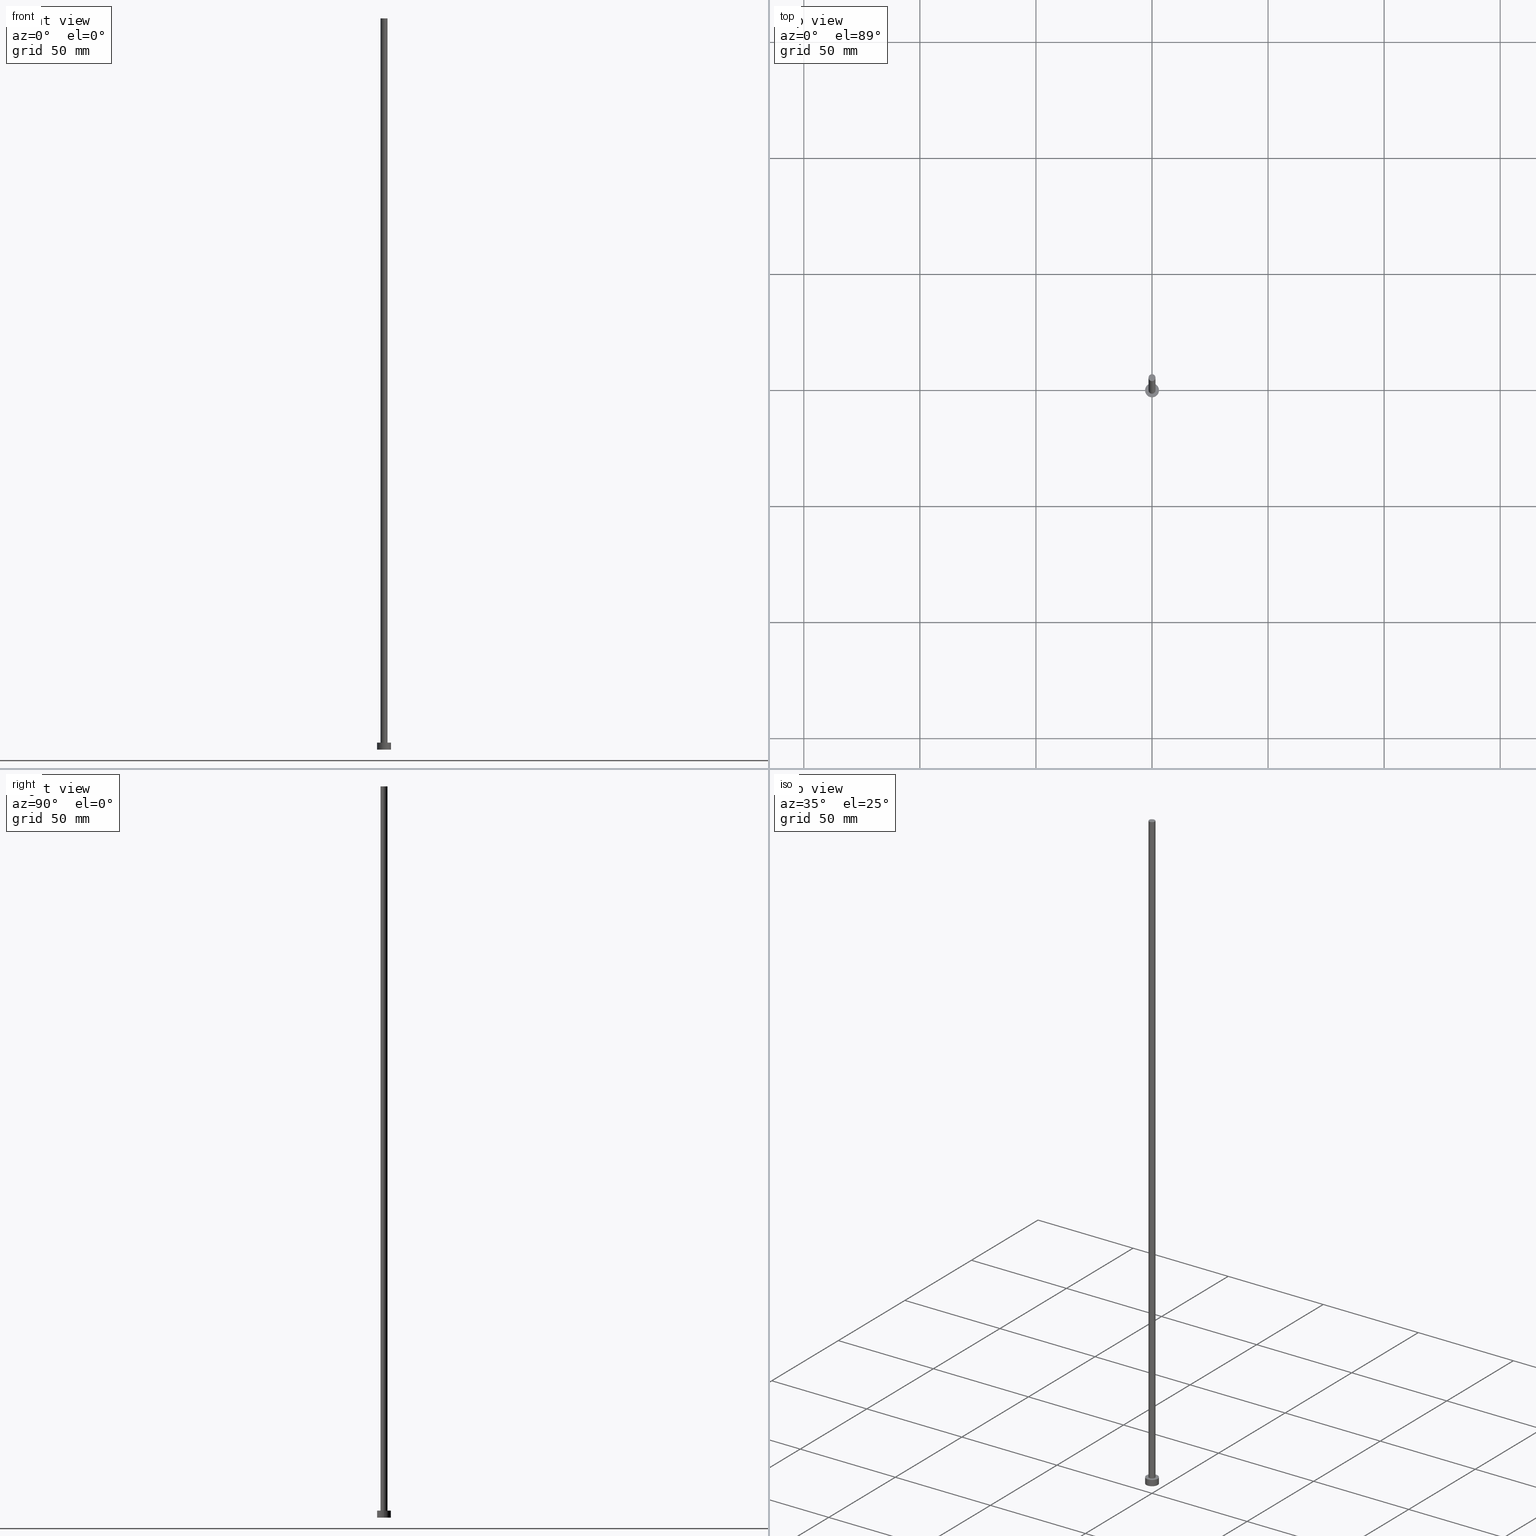
[diagram: canonical four-view strip — front | top / right | iso, engineering-drawing reading convention]
A machine part, canonical four-view strip (front | top / right | iso — engineering-drawing reading convention). The complete STEP part file that produces these views, byte-faithful:
ISO-10303-21;
HEADER;
FILE_DESCRIPTION (( 'STEP AP203' ),
    '1' );
FILE_NAME ('7915.STEP',
    '2023-02-13T14:26:25',
    ( '' ),
    ( '' ),
    'SwSTEP 2.0',
    'SolidWorks 2019',
    '' );
FILE_SCHEMA (( 'CONFIG_CONTROL_DESIGN' ));
ENDSEC;

DATA;
#1 = DIRECTION ( 'NONE',  ( 1.000000000000000000, 0.000000000000000000, 0.000000000000000000 ) ) ;
#2 = CC_DESIGN_DATE_AND_TIME_ASSIGNMENT ( #11, #209, ( #21 ) ) ;
#3 = DIRECTION ( 'NONE',  ( 0.000000000000000000, 0.000000000000000000, 1.000000000000000000 ) ) ;
#4 = SHAPE_DEFINITION_REPRESENTATION ( #112, #14 ) ;
#5 = ADVANCED_FACE ( 'NONE', ( #157 ), #41, .T. ) ;
#6 = CALENDAR_DATE ( 2023, 13, 2 ) ;
#7 = AXIS2_PLACEMENT_3D ( 'NONE', #234, #252, #113 ) ;
#8 = ORIENTED_EDGE ( 'NONE', *, *, #219, .F. ) ;
#9 = CARTESIAN_POINT ( 'NONE',  ( 0.000000000000000000, 0.000000000000000000, 3.000000000000000000 ) ) ;
#10 = EDGE_CURVE ( 'NONE', #224, #248, #182, .T. ) ;
#11 = DATE_AND_TIME ( #78, #177 ) ;
#12 = AXIS2_PLACEMENT_3D ( 'NONE', #45, #3, #122 ) ;
#13 = AXIS2_PLACEMENT_3D ( 'NONE', #172, #153, #99 ) ;
#14 = ADVANCED_BREP_SHAPE_REPRESENTATION ( '7915', ( #115, #7 ), #212 ) ;
#15 = APPROVAL_STATUS ( 'not_yet_approved' ) ;
#16 = PERSON_AND_ORGANIZATION ( #143, #34 ) ;
#17 = EDGE_CURVE ( 'NONE', #207, #81, #240, .T. ) ;
#18 = AXIS2_PLACEMENT_3D ( 'NONE', #149, #228, #91 ) ;
#19 = EDGE_LOOP ( 'NONE', ( #92, #215, #174, #254 ) ) ;
#20 = EDGE_LOOP ( 'NONE', ( #118, #77, #52, #148 ) ) ;
#21 = PRODUCT_DEFINITION ( 'NEZN�M�', '', #166, #223 ) ;
#22 = DATE_AND_TIME ( #46, #124 ) ;
#23 = PERSON_AND_ORGANIZATION ( #143, #34 ) ;
#24 = VECTOR ( 'NONE', #156, 1000.000000000000000 ) ;
#25 = APPROVAL_STATUS ( 'not_yet_approved' ) ;
#26 = PERSON_AND_ORGANIZATION ( #143, #34 ) ;
#27 = EDGE_CURVE ( 'NONE', #72, #173, #93, .T. ) ;
#28 = ORIENTED_EDGE ( 'NONE', *, *, #49, .T. ) ;
#29 = FACE_OUTER_BOUND ( 'NONE', #19, .T. ) ;
#30 = APPROVAL_PERSON_ORGANIZATION ( #110, #199, #213 ) ;
#31 = CYLINDRICAL_SURFACE ( 'NONE', #79, 1.500000000000000222 ) ;
#32 = CC_DESIGN_PERSON_AND_ORGANIZATION_ASSIGNMENT ( #16, #206, ( #21 ) ) ;
#33 = ORIENTED_EDGE ( 'NONE', *, *, #162, .T. ) ;
#34 = ORGANIZATION ( 'NEUR�EN�', 'NEUR�EN�', '' ) ;
#35 = CARTESIAN_POINT ( 'NONE',  ( 3.000000000000000444, 3.673940397442060361E-16, 3.000000000000000000 ) ) ;
#36 = COORDINATED_UNIVERSAL_TIME_OFFSET ( 1, 0, .AHEAD. ) ;
#37 = CARTESIAN_POINT ( 'NONE',  ( 0.000000000000000000, 0.000000000000000000, 3.000000000000000000 ) ) ;
#38 = EDGE_LOOP ( 'NONE', ( #131, #117, #71, #186 ) ) ;
#39 = APPROVAL ( #25, 'NEUR�EN�' ) ;
#40 = ORIENTED_EDGE ( 'NONE', *, *, #120, .T. ) ;
#41 = CYLINDRICAL_SURFACE ( 'NONE', #127, 3.000000000000000444 ) ;
#42 = ORIENTED_EDGE ( 'NONE', *, *, #225, .T. ) ;
#43 = CALENDAR_DATE ( 2023, 13, 2 ) ;
#44 = COORDINATED_UNIVERSAL_TIME_OFFSET ( 1, 0, .AHEAD. ) ;
#45 = CARTESIAN_POINT ( 'NONE',  ( 0.000000000000000000, 0.000000000000000000, 315.0000000000000000 ) ) ;
#46 = CALENDAR_DATE ( 2023, 13, 2 ) ;
#47 = APPLICATION_CONTEXT ( 'configuration controlled 3d designs of mechanical parts and assemblies' ) ;
#48 = CC_DESIGN_APPROVAL ( #199, ( #166 ) ) ;
#49 = EDGE_CURVE ( 'NONE', #173, #72, #56, .T. ) ;
#50 = DIRECTION ( 'NONE',  ( 1.000000000000000000, 0.000000000000000000, 0.000000000000000000 ) ) ;
#51 = CYLINDRICAL_SURFACE ( 'NONE', #244, 3.000000000000000444 ) ;
#52 = ORIENTED_EDGE ( 'NONE', *, *, #17, .T. ) ;
#53 = DIRECTION ( 'NONE',  ( -0.000000000000000000, -0.000000000000000000, -1.000000000000000000 ) ) ;
#54 = PERSON_AND_ORGANIZATION_ROLE ( 'design_owner' ) ;
#55 = EDGE_CURVE ( 'NONE', #138, #81, #101, .T. ) ;
#56 = CIRCLE ( 'NONE', #12, 1.500000000000000222 ) ;
#57 = MECHANICAL_CONTEXT ( 'NONE', #47, 'mechanical' ) ;
#58 = ORIENTED_EDGE ( 'NONE', *, *, #27, .T. ) ;
#59 = DIRECTION ( 'NONE',  ( -1.000000000000000000, 0.000000000000000000, 0.000000000000000000 ) ) ;
#60 = EDGE_LOOP ( 'NONE', ( #97, #8 ) ) ;
#61 = CARTESIAN_POINT ( 'NONE',  ( -1.500000000000000222, 0.000000000000000000, 315.0000000000000000 ) ) ;
#62 = COORDINATED_UNIVERSAL_TIME_OFFSET ( 1, 0, .AHEAD. ) ;
#63 = DIRECTION ( 'NONE',  ( -0.000000000000000000, -0.000000000000000000, -1.000000000000000000 ) ) ;
#64 = DIRECTION ( 'NONE',  ( 0.000000000000000000, 0.000000000000000000, 1.000000000000000000 ) ) ;
#65 = ADVANCED_FACE ( 'NONE', ( #84, #144 ), #217, .T. ) ;
#66 = CARTESIAN_POINT ( 'NONE',  ( -3.000000000000000444, 0.000000000000000000, 0.000000000000000000 ) ) ;
#67 = AXIS2_PLACEMENT_3D ( 'NONE', #109, #175, #1 ) ;
#68 = CIRCLE ( 'NONE', #155, 1.500000000000000222 ) ;
#69 = LOCAL_TIME ( 15, 26, 25.00000000000000000, #44 ) ;
#70 = LINE ( 'NONE', #187, #90 ) ;
#71 = ORIENTED_EDGE ( 'NONE', *, *, #246, .T. ) ;
#72 = VERTEX_POINT ( 'NONE', #168 ) ;
#73 = ADVANCED_FACE ( 'NONE', ( #226 ), #51, .T. ) ;
#74 = DIRECTION ( 'NONE',  ( 1.000000000000000000, 0.000000000000000000, 0.000000000000000000 ) ) ;
#75 = ADVANCED_FACE ( 'NONE', ( #247 ), #132, .T. ) ;
#76 = LINE ( 'NONE', #250, #24 ) ;
#77 = ORIENTED_EDGE ( 'NONE', *, *, #100, .T. ) ;
#78 = CALENDAR_DATE ( 2023, 13, 2 ) ;
#79 = AXIS2_PLACEMENT_3D ( 'NONE', #245, #189, #59 ) ;
#80 = VERTEX_POINT ( 'NONE', #35 ) ;
#81 = VERTEX_POINT ( 'NONE', #66 ) ;
#82 = CC_DESIGN_APPROVAL ( #39, ( #238 ) ) ;
#83 = PERSON_AND_ORGANIZATION_ROLE ( 'design_supplier' ) ;
#84 = FACE_BOUND ( 'NONE', #60, .T. ) ;
#85 = APPROVAL ( #95, 'NEUR�EN�' ) ;
#86 = DIRECTION ( 'NONE',  ( 0.000000000000000000, 0.000000000000000000, 1.000000000000000000 ) ) ;
#87 = CARTESIAN_POINT ( 'NONE',  ( 0.000000000000000000, 0.000000000000000000, 315.0000000000000000 ) ) ;
#88 = DIRECTION ( 'NONE',  ( -0.000000000000000000, -0.000000000000000000, -1.000000000000000000 ) ) ;
#89 = AXIS2_PLACEMENT_3D ( 'NONE', #9, #133, #50 ) ;
#90 = VECTOR ( 'NONE', #185, 1000.000000000000000 ) ;
#91 = DIRECTION ( 'NONE',  ( 1.000000000000000000, 0.000000000000000000, -0.000000000000000000 ) ) ;
#92 = ORIENTED_EDGE ( 'NONE', *, *, #27, .F. ) ;
#93 = CIRCLE ( 'NONE', #104, 1.500000000000000222 ) ;
#94 = CC_DESIGN_APPROVAL ( #85, ( #21 ) ) ;
#95 = APPROVAL_STATUS ( 'not_yet_approved' ) ;
#96 = ORIENTED_EDGE ( 'NONE', *, *, #100, .F. ) ;
#97 = ORIENTED_EDGE ( 'NONE', *, *, #10, .F. ) ;
#98 = CC_DESIGN_PERSON_AND_ORGANIZATION_ASSIGNMENT ( #26, #216, ( #238 ) ) ;
#99 = DIRECTION ( 'NONE',  ( 1.000000000000000000, 0.000000000000000000, 0.000000000000000000 ) ) ;
#100 = EDGE_CURVE ( 'NONE', #80, #207, #70, .T. ) ;
#101 = LINE ( 'NONE', #178, #107 ) ;
#102 = COORDINATED_UNIVERSAL_TIME_OFFSET ( 1, 0, .AHEAD. ) ;
#103 = DATE_TIME_ROLE ( 'classification_date' ) ;
#104 = AXIS2_PLACEMENT_3D ( 'NONE', #160, #218, #239 ) ;
#105 = LOCAL_TIME ( 15, 26, 25.00000000000000000, #191 ) ;
#106 = DIRECTION ( 'NONE',  ( -1.000000000000000000, 0.000000000000000000, 0.000000000000000000 ) ) ;
#107 = VECTOR ( 'NONE', #63, 1000.000000000000000 ) ;
#108 = AXIS2_PLACEMENT_3D ( 'NONE', #129, #86, #165 ) ;
#109 = CARTESIAN_POINT ( 'NONE',  ( 0.000000000000000000, 0.000000000000000000, 3.000000000000000000 ) ) ;
#110 = PERSON_AND_ORGANIZATION ( #143, #34 ) ;
#111 = VECTOR ( 'NONE', #232, 1000.000000000000000 ) ;
#112 = PRODUCT_DEFINITION_SHAPE ( 'NONE', 'NONE',  #21 ) ;
#113 = DIRECTION ( 'NONE',  ( 1.000000000000000000, 0.000000000000000000, 0.000000000000000000 ) ) ;
#114 =( LENGTH_UNIT ( ) NAMED_UNIT ( * ) SI_UNIT ( .MILLI., .METRE. ) );
#115 = MANIFOLD_SOLID_BREP ( 'P�idat vysunut�m3', #221 ) ;
#116 = PRODUCT ( '7915', '7915', '', ( #57 ) ) ;
#117 = ORIENTED_EDGE ( 'NONE', *, *, #49, .F. ) ;
#118 = ORIENTED_EDGE ( 'NONE', *, *, #120, .F. ) ;
#119 = PERSON_AND_ORGANIZATION ( #143, #34 ) ;
#120 = EDGE_CURVE ( 'NONE', #80, #138, #197, .T. ) ;
#121 = PERSON_AND_ORGANIZATION_ROLE ( 'creator' ) ;
#122 = DIRECTION ( 'NONE',  ( 1.000000000000000000, 0.000000000000000000, 0.000000000000000000 ) ) ;
#123 = APPROVAL_DATE_TIME ( #22, #39 ) ;
#124 = LOCAL_TIME ( 15, 26, 25.00000000000000000, #102 ) ;
#125 = DIRECTION ( 'NONE',  ( 0.000000000000000000, 0.000000000000000000, 1.000000000000000000 ) ) ;
#126 = CARTESIAN_POINT ( 'NONE',  ( 0.000000000000000000, 0.000000000000000000, 3.000000000000000000 ) ) ;
#127 = AXIS2_PLACEMENT_3D ( 'NONE', #203, #235, #193 ) ;
#128 = PLANE ( 'NONE',  #108 ) ;
#129 = CARTESIAN_POINT ( 'NONE',  ( 0.000000000000000000, 0.000000000000000000, 0.000000000000000000 ) ) ;
#130 = ADVANCED_FACE ( 'NONE', ( #29 ), #243, .T. ) ;
#131 = ORIENTED_EDGE ( 'NONE', *, *, #176, .F. ) ;
#132 = PLANE ( 'NONE',  #18 ) ;
#133 = DIRECTION ( 'NONE',  ( 0.000000000000000000, 0.000000000000000000, 1.000000000000000000 ) ) ;
#134 = CARTESIAN_POINT ( 'NONE',  ( -1.500000000000000222, 0.000000000000000000, 3.000000000000000000 ) ) ;
#135 = APPROVAL_DATE_TIME ( #230, #85 ) ;
#136 = APPROVAL_PERSON_ORGANIZATION ( #196, #39, #142 ) ;
#137 = PERSON_AND_ORGANIZATION ( #143, #34 ) ;
#138 = VERTEX_POINT ( 'NONE', #220 ) ;
#139 = PRODUCT_RELATED_PRODUCT_CATEGORY ( 'detail', '', ( #116 ) ) ;
#140 =( NAMED_UNIT ( * ) SI_UNIT ( $, .STERADIAN. ) SOLID_ANGLE_UNIT ( ) );
#141 = ORIENTED_EDGE ( 'NONE', *, *, #225, .F. ) ;
#142 = APPROVAL_ROLE ( '' ) ;
#143 = PERSON ( 'NEUR�EN�', 'NEUR�EN�', 'NEUR�EN�', ('NEUR�EN�'), ('NEUR�EN�'), ('NEUR�EN�') ) ;
#144 = FACE_OUTER_BOUND ( 'NONE', #211, .T. ) ;
#145 = DIRECTION ( 'NONE',  ( 1.000000000000000000, 0.000000000000000000, 0.000000000000000000 ) ) ;
#146 = DIRECTION ( 'NONE',  ( -1.000000000000000000, 0.000000000000000000, 0.000000000000000000 ) ) ;
#147 = ADVANCED_FACE ( 'NONE', ( #183 ), #128, .F. ) ;
#148 = ORIENTED_EDGE ( 'NONE', *, *, #55, .F. ) ;
#149 = CARTESIAN_POINT ( 'NONE',  ( 0.000000000000000000, 0.000000000000000000, 315.0000000000000000 ) ) ;
#150 = CARTESIAN_POINT ( 'NONE',  ( 0.000000000000000000, 0.000000000000000000, 3.000000000000000000 ) ) ;
#151 = CARTESIAN_POINT ( 'NONE',  ( 1.500000000000000222, 1.836970198721030181E-16, 3.000000000000000000 ) ) ;
#152 = DIRECTION ( 'NONE',  ( 0.000000000000000000, 0.000000000000000000, 1.000000000000000000 ) ) ;
#153 = DIRECTION ( 'NONE',  ( 0.000000000000000000, 0.000000000000000000, 1.000000000000000000 ) ) ;
#154 = AXIS2_PLACEMENT_3D ( 'NONE', #159, #237, #169 ) ;
#155 = AXIS2_PLACEMENT_3D ( 'NONE', #37, #152, #74 ) ;
#156 = DIRECTION ( 'NONE',  ( -0.000000000000000000, -0.000000000000000000, -1.000000000000000000 ) ) ;
#157 = FACE_OUTER_BOUND ( 'NONE', #20, .T. ) ;
#158 = PERSON_AND_ORGANIZATION ( #143, #34 ) ;
#159 = CARTESIAN_POINT ( 'NONE',  ( 0.000000000000000000, 0.000000000000000000, 0.000000000000000000 ) ) ;
#160 = CARTESIAN_POINT ( 'NONE',  ( 0.000000000000000000, 0.000000000000000000, 315.0000000000000000 ) ) ;
#161 = SECURITY_CLASSIFICATION_LEVEL ( 'unclassified' ) ;
#162 = EDGE_CURVE ( 'NONE', #138, #80, #229, .T. ) ;
#163 = CARTESIAN_POINT ( 'NONE',  ( 0.000000000000000000, 0.000000000000000000, 3.000000000000000000 ) ) ;
#164 = ADVANCED_FACE ( 'NONE', ( #201 ), #31, .T. ) ;
#165 = DIRECTION ( 'NONE',  ( 1.000000000000000000, 0.000000000000000000, -0.000000000000000000 ) ) ;
#166 = PRODUCT_DEFINITION_FORMATION_WITH_SPECIFIED_SOURCE ( 'LIBOVOLN�', '', #116, .NOT_KNOWN. ) ;
#167 = EDGE_LOOP ( 'NONE', ( #28, #58 ) ) ;
#168 = CARTESIAN_POINT ( 'NONE',  ( 1.500000000000000222, 1.836970198721030181E-16, 315.0000000000000000 ) ) ;
#169 = DIRECTION ( 'NONE',  ( 1.000000000000000000, 0.000000000000000000, 0.000000000000000000 ) ) ;
#170 = LINE ( 'NONE', #253, #111 ) ;
#171 = APPLICATION_PROTOCOL_DEFINITION ( 'international standard', 'config_control_design', 1994, #47 ) ;
#172 = CARTESIAN_POINT ( 'NONE',  ( 0.000000000000000000, 0.000000000000000000, 0.000000000000000000 ) ) ;
#173 = VERTEX_POINT ( 'NONE', #61 ) ;
#174 = ORIENTED_EDGE ( 'NONE', *, *, #219, .T. ) ;
#175 = DIRECTION ( 'NONE',  ( 0.000000000000000000, 0.000000000000000000, 1.000000000000000000 ) ) ;
#176 = EDGE_CURVE ( 'NONE', #72, #248, #170, .T. ) ;
#177 = LOCAL_TIME ( 15, 26, 25.00000000000000000, #36 ) ;
#178 = CARTESIAN_POINT ( 'NONE',  ( -3.000000000000000444, 0.000000000000000000, 3.000000000000000000 ) ) ;
#179 = CC_DESIGN_PERSON_AND_ORGANIZATION_ASSIGNMENT ( #119, #121, ( #166 ) ) ;
#180 = DATE_AND_TIME ( #43, #69 ) ;
#181 = EDGE_LOOP ( 'NONE', ( #141, #227 ) ) ;
#182 = CIRCLE ( 'NONE', #67, 1.500000000000000222 ) ;
#183 = FACE_OUTER_BOUND ( 'NONE', #181, .T. ) ;
#184 = UNCERTAINTY_MEASURE_WITH_UNIT (LENGTH_MEASURE( 1.000000000000000082E-05 ), #114, 'distance_accuracy_value', 'NONE');
#185 = DIRECTION ( 'NONE',  ( -0.000000000000000000, -0.000000000000000000, -1.000000000000000000 ) ) ;
#186 = ORIENTED_EDGE ( 'NONE', *, *, #10, .T. ) ;
#187 = CARTESIAN_POINT ( 'NONE',  ( 3.000000000000000444, 3.673940397442060361E-16, 3.000000000000000000 ) ) ;
#188 =( NAMED_UNIT ( * ) PLANE_ANGLE_UNIT ( ) SI_UNIT ( $, .RADIAN. ) );
#189 = DIRECTION ( 'NONE',  ( -0.000000000000000000, -0.000000000000000000, -1.000000000000000000 ) ) ;
#190 = APPLICATION_PROTOCOL_DEFINITION ( 'international standard', 'config_control_design', 1994, #214 ) ;
#191 = COORDINATED_UNIVERSAL_TIME_OFFSET ( 1, 0, .AHEAD. ) ;
#192 = CARTESIAN_POINT ( 'NONE',  ( 3.000000000000000444, 3.673940397442060361E-16, 0.000000000000000000 ) ) ;
#193 = DIRECTION ( 'NONE',  ( -1.000000000000000000, 0.000000000000000000, 0.000000000000000000 ) ) ;
#194 = CC_DESIGN_PERSON_AND_ORGANIZATION_ASSIGNMENT ( #158, #54, ( #116 ) ) ;
#195 = DATE_AND_TIME ( #6, #205 ) ;
#196 = PERSON_AND_ORGANIZATION ( #143, #34 ) ;
#197 = CIRCLE ( 'NONE', #89, 3.000000000000000444 ) ;
#198 = CIRCLE ( 'NONE', #13, 3.000000000000000444 ) ;
#199 = APPROVAL ( #15, 'NEUR�EN�' ) ;
#200 = DIRECTION ( 'NONE',  ( 1.000000000000000000, 0.000000000000000000, -0.000000000000000000 ) ) ;
#201 = FACE_OUTER_BOUND ( 'NONE', #38, .T. ) ;
#202 = AXIS2_PLACEMENT_3D ( 'NONE', #87, #88, #146 ) ;
#203 = CARTESIAN_POINT ( 'NONE',  ( 0.000000000000000000, 0.000000000000000000, 3.000000000000000000 ) ) ;
#204 = CC_DESIGN_DATE_AND_TIME_ASSIGNMENT ( #195, #103, ( #238 ) ) ;
#205 = LOCAL_TIME ( 15, 26, 25.00000000000000000, #62 ) ;
#206 = PERSON_AND_ORGANIZATION_ROLE ( 'creator' ) ;
#207 = VERTEX_POINT ( 'NONE', #192 ) ;
#208 = APPROVAL_ROLE ( '' ) ;
#209 = DATE_TIME_ROLE ( 'creation_date' ) ;
#210 = ORIENTED_EDGE ( 'NONE', *, *, #55, .T. ) ;
#211 = EDGE_LOOP ( 'NONE', ( #33, #40 ) ) ;
#212 =( GEOMETRIC_REPRESENTATION_CONTEXT ( 3 ) GLOBAL_UNCERTAINTY_ASSIGNED_CONTEXT ( ( #184 ) ) GLOBAL_UNIT_ASSIGNED_CONTEXT ( ( #114, #188, #140 ) ) REPRESENTATION_CONTEXT ( 'NONE', 'WORKASPACE' ) );
#213 = APPROVAL_ROLE ( '' ) ;
#214 = APPLICATION_CONTEXT ( 'configuration controlled 3d designs of mechanical parts and assemblies' ) ;
#215 = ORIENTED_EDGE ( 'NONE', *, *, #176, .T. ) ;
#216 = PERSON_AND_ORGANIZATION_ROLE ( 'classification_officer' ) ;
#217 = PLANE ( 'NONE',  #249 ) ;
#218 = DIRECTION ( 'NONE',  ( 0.000000000000000000, 0.000000000000000000, 1.000000000000000000 ) ) ;
#219 = EDGE_CURVE ( 'NONE', #248, #224, #68, .T. ) ;
#220 = CARTESIAN_POINT ( 'NONE',  ( -3.000000000000000444, 0.000000000000000000, 3.000000000000000000 ) ) ;
#221 = CLOSED_SHELL ( 'NONE', ( #130, #5, #73, #65, #147, #164, #75 ) ) ;
#222 = CC_DESIGN_SECURITY_CLASSIFICATION ( #238, ( #166 ) ) ;
#223 = DESIGN_CONTEXT ( 'detailed design', #214, 'design' ) ;
#224 = VERTEX_POINT ( 'NONE', #134 ) ;
#225 = EDGE_CURVE ( 'NONE', #81, #207, #198, .T. ) ;
#226 = FACE_OUTER_BOUND ( 'NONE', #255, .T. ) ;
#227 = ORIENTED_EDGE ( 'NONE', *, *, #17, .F. ) ;
#228 = DIRECTION ( 'NONE',  ( 0.000000000000000000, 0.000000000000000000, 1.000000000000000000 ) ) ;
#229 = CIRCLE ( 'NONE', #241, 3.000000000000000444 ) ;
#230 = DATE_AND_TIME ( #236, #105 ) ;
#231 = CC_DESIGN_PERSON_AND_ORGANIZATION_ASSIGNMENT ( #23, #83, ( #166 ) ) ;
#232 = DIRECTION ( 'NONE',  ( -0.000000000000000000, -0.000000000000000000, -1.000000000000000000 ) ) ;
#233 = ORIENTED_EDGE ( 'NONE', *, *, #162, .F. ) ;
#234 = CARTESIAN_POINT ( 'NONE',  ( 0.000000000000000000, 0.000000000000000000, 0.000000000000000000 ) ) ;
#235 = DIRECTION ( 'NONE',  ( -0.000000000000000000, -0.000000000000000000, -1.000000000000000000 ) ) ;
#236 = CALENDAR_DATE ( 2023, 13, 2 ) ;
#237 = DIRECTION ( 'NONE',  ( 0.000000000000000000, 0.000000000000000000, 1.000000000000000000 ) ) ;
#238 = SECURITY_CLASSIFICATION ( '', '', #161 ) ;
#239 = DIRECTION ( 'NONE',  ( 1.000000000000000000, 0.000000000000000000, 0.000000000000000000 ) ) ;
#240 = CIRCLE ( 'NONE', #154, 3.000000000000000444 ) ;
#241 = AXIS2_PLACEMENT_3D ( 'NONE', #163, #64, #145 ) ;
#242 = APPROVAL_DATE_TIME ( #180, #199 ) ;
#243 = CYLINDRICAL_SURFACE ( 'NONE', #202, 1.500000000000000222 ) ;
#244 = AXIS2_PLACEMENT_3D ( 'NONE', #150, #53, #106 ) ;
#245 = CARTESIAN_POINT ( 'NONE',  ( 0.000000000000000000, 0.000000000000000000, 315.0000000000000000 ) ) ;
#246 = EDGE_CURVE ( 'NONE', #173, #224, #76, .T. ) ;
#247 = FACE_OUTER_BOUND ( 'NONE', #167, .T. ) ;
#248 = VERTEX_POINT ( 'NONE', #151 ) ;
#249 = AXIS2_PLACEMENT_3D ( 'NONE', #126, #125, #200 ) ;
#250 = CARTESIAN_POINT ( 'NONE',  ( -1.500000000000000222, 0.000000000000000000, 315.0000000000000000 ) ) ;
#251 = APPROVAL_PERSON_ORGANIZATION ( #137, #85, #208 ) ;
#252 = DIRECTION ( 'NONE',  ( 0.000000000000000000, 0.000000000000000000, 1.000000000000000000 ) ) ;
#253 = CARTESIAN_POINT ( 'NONE',  ( 1.500000000000000222, 1.836970198721030181E-16, 315.0000000000000000 ) ) ;
#254 = ORIENTED_EDGE ( 'NONE', *, *, #246, .F. ) ;
#255 = EDGE_LOOP ( 'NONE', ( #96, #233, #210, #42 ) ) ;
ENDSEC;
END-ISO-10303-21;
